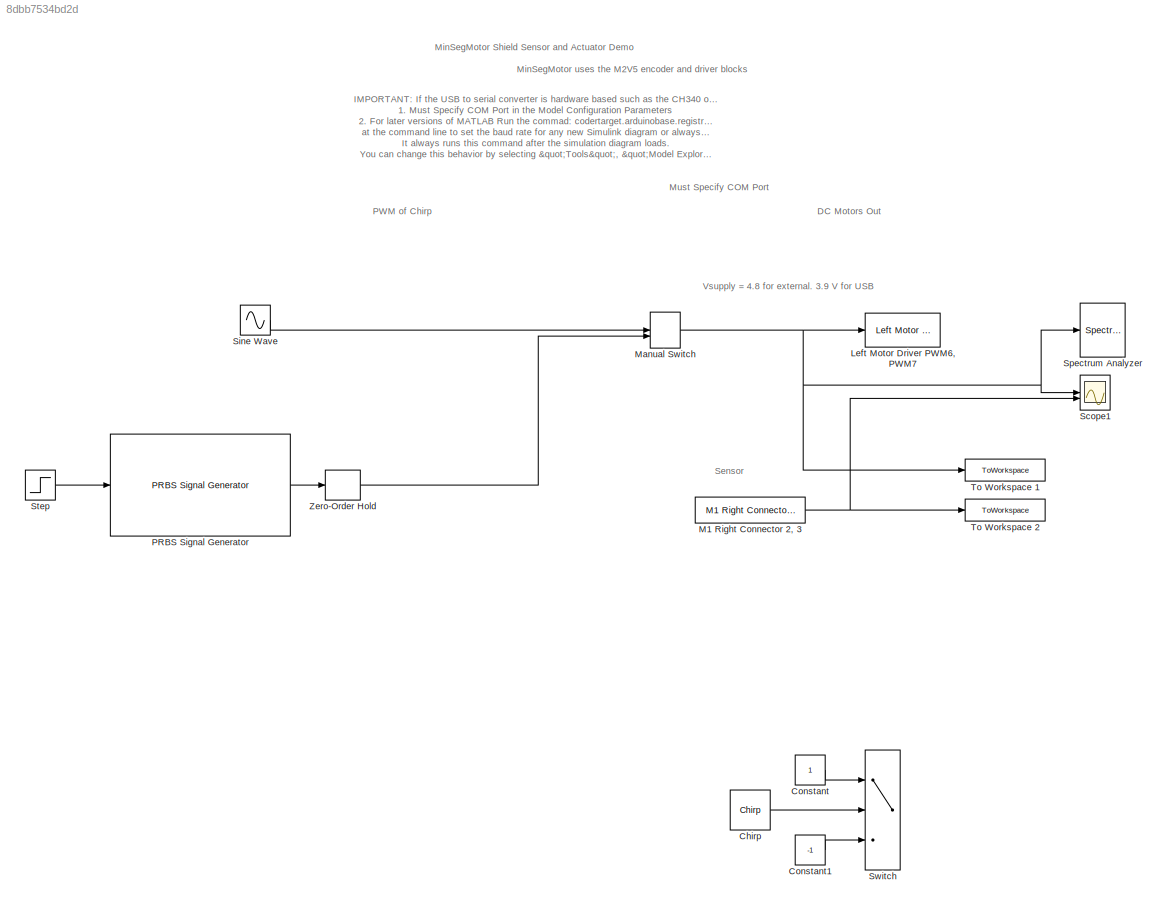
MODEL slx_8dbb7534bd2d
KIND model
CONFIG AbsTol = auto
CONFIG EnableMultiTasking = on
CONFIG FixedStep = auto
CONFIG MaxStep = auto
CONFIG MinStep = auto
CONFIG PostLoadFcn = try, \ncodertarget.arduinobase.registry.setBaudRate(gcs,115200)\ndisp('baud rate set to 115200 for external mode hardware serial')\nbaudrate='set_to_115200'\ncatch\ndisp('baud rate setting not needed in this version')\nend
CONFIG RelTol = 1e-3
CONFIG SampleTimeConstraint = Unconstrained
CONFIG SolverName = ode45
CONFIG StartTime = 0.0
CONFIG StopTime = 10.0
BLOCK [Reference] Chirp  REF=dspsrcs4/Chirp
  Commented = on
  SourceBlock = dspsrcs4/Chirp
  SourceType = Chirp
BLOCK [Constant] Constant
  Commented = on
BLOCK [Constant] Constant1
  Commented = on
  Value = -1
BLOCK [Reference] Left Motor Driver PWM6, PWM7  REF=MinSegLibrary_M2V5/Left Motor Driver
PWM6, PWM7
  SourceBlock = MinSegLibrary_M2V5/Left Motor Driver\nPWM6, PWM7
BLOCK [Reference] M1 Right Connector 2, 3  REF=MinSegLibrary_M2V5/M1 Right Connector 2, 3
  SourceBlock = MinSegLibrary_M2V5/M1 Right Connector 2, 3
  SourceType = Encoder_arduino
BLOCK [ManualSwitch] Manual Switch
BLOCK [Reference] PRBS Signal Generator  REF=slctrl_signal/PRBS Signal Generator
  LibrarySourceBlock = slctrlblks/Signal Generation/PRBS Signal Generator
  SourceBlock = slctrl_signal/PRBS Signal Generator
  SourceType = PRBS Signal Generator
BLOCK [Scope] Scope1
  Floating = off
  NumInputPorts = 2
  ScopeSpecificationString = Simulink.scopes.TimeScopeBlockCfg('CurrentConfiguration', extmgr.ConfigurationSet(extmgr.Configuration('Core','General UI',true),extmgr.Configuration('Core','Source UI',true),extmgr.Configuration('Sources','WiredSimulink',true),extmgr.Configuration('Visuals','Time Domain',true,'SerializedDisplays',{struct('MinYLimReal','-3.12475','MaxYLimReal','3.12475','YLabelReal','','MinYLimMag','0.00000','MaxY...<+2199ch>
BLOCK [Sin] Sine Wave
  Amplitude = 2.5
  Frequency = 8*2*pi
  SampleTime = 0
BLOCK [SpectrumAnalyzer] Spectrum Analyzer
  AllowFFTLengthLessThanSamplesPerUpdate = on
  GraphicalSettings = {"GraphicalSettings":{"Style":{"BackgroundColor":[0.1568627450980392,0.1568627450980392,0.1568627450980392],"AxesColor":[0,0,0],"LabelsColor":[0.6862745098039216,0.6862745098039216,0.6862745098039216],"PreserveColors":false,"Visible":[true],"LineStyle":["-"],"LineColor":[[1,1,0.06666666666666667]],"LineWidth":[1.5],"Marker":["none"],"FontSize":"small"},"Cursors":{"Enabled":false,"XLocation":[2,8],...<+872ch>
  ScopeFrameLocation = window
  ScopeSpecificationString = spbscopes.SpectrumAnalyzerBlockCfg('CurrentConfiguration', extmgr.ConfigurationSet(extmgr.Configuration('Core','General UI',true),extmgr.Configuration('Core','Source UI',true),extmgr.Configuration('Sources','WiredSimulink',true),extmgr.Configuration('Visuals','Spectrum',true,'AxesProperties',struct('Color',{[0 0 0],[0 0 0]},'XColor',{[0.686274509803922 0.686274509803922 0.686274509803922],[0.68627...<+1359ch>
  SelectedToolstripTab = spectrumAnalyzerToolstrip.spectralMaskTab
  ShowLegend = on
  Span = 500
  StartFrequency = -250
  StopFrequency = 250
  WasSavedAsWebScope = on
  WindowPosition = [449.000000,160.000000,638.000000,640.000000,]
  YLimits = [-32.28539808,36.59625162]
BLOCK [Step] Step
  SampleTime = 0
  Time = 0.1
BLOCK [Switch] Switch
  Commented = on
  Criteria = u2 > Threshold
  InputSameDT = off
  SaturateOnIntegerOverflow = off
BLOCK [ToWorkspace] To Workspace 1
  MaxDataPoints = Inf
  SampleTime = -1
  SaveFormat = Structure With Time
  VariableName = in_voltage
BLOCK [ToWorkspace] To Workspace 2
  MaxDataPoints = Inf
  SampleTime = -1
  SaveFormat = Structure With Time
  VariableName = out_encoder
BLOCK [ZeroOrderHold] Zero-Order Hold
  SampleTime = 1/500
ANNOTATION (root): IMPORTANT : If the USB to serial converter is hardware based such as the CH340 or the PL2303 you must: 1. Must Specify COM Port in the Model Configuration Parameters 2. For later versions of MATLAB Run the commad: codertarget.arduinobase.registry.setBaudRate(gcs,115200) at the command line to set the baud rate for any new Simulink diagram or always use this file to start new projects. It always ru...<+147ch>
ANNOTATION (root): Must Specify COM Port
ANNOTATION (root): DC Motors Out
ANNOTATION (root): MinSegMotor Shield Sensor and Actuator Demo
ANNOTATION (root): MinSegMotor uses the M2V5 encoder and driver blocks
ANNOTATION (root): PWM of Chirp
ANNOTATION (root): Sensor
ANNOTATION (root): Vsupply = 4.8 for external. 3.9 V for USB
LINE Chirp:1 -> Switch:2
LINE Constant1:1 -> Switch:3
LINE Constant:1 -> Switch:1
NET M1 Right Connector 2, 3:1 -> Scope1:2, To Workspace 2:1
NET Manual Switch:1 -> Left Motor Driver PWM6, PWM7:1, Scope1:1, Spectrum Analyzer:1, To Workspace 1:1
LINE PRBS Signal Generator:1 -> Zero-Order Hold:1
LINE Sine Wave:1 -> Manual Switch:1
LINE Step:1 -> PRBS Signal Generator:1
LINE Zero-Order Hold:1 -> Manual Switch:2
note: NET lines group one-source signal fan-out (src -> all destinations, sorted); 1:1 wires keep LINE
